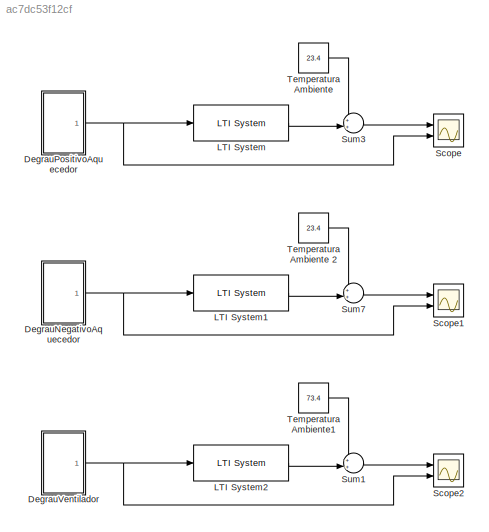
MODEL slx_ac7dc53f12cf
KIND model
CONFIG AbsTol = auto
CONFIG EnableMultiTasking = off
CONFIG FixedStep = auto
CONFIG MaxStep = auto
CONFIG MinStep = auto
CONFIG RelTol = 1e-3
CONFIG SampleTimeConstraint = Unconstrained
CONFIG SolverName = VariableStepAuto
CONFIG StartTime = 0.0
CONFIG StopTime = 4000
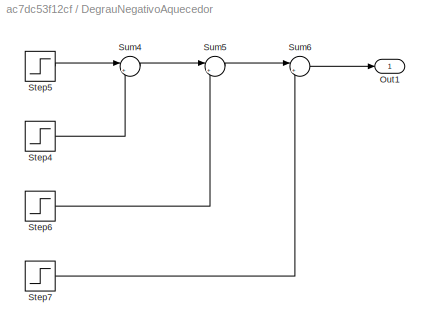
BLOCK [SubSystem] DegrauNegativoAquecedor
  Ports = [0, 1]
  RequestExecContextInheritance = off
BLOCK [Outport] DegrauNegativoAquecedor/Out1
BLOCK [Step] DegrauNegativoAquecedor/Step4
  After = -25
  SampleTime = 0
  Time = 2025
BLOCK [Step] DegrauNegativoAquecedor/Step5
  After = 75
  Before = 100
  SampleTime = 0
  Time = 1432
BLOCK [Step] DegrauNegativoAquecedor/Step6
  After = -25
  SampleTime = 0
  Time = 2674
BLOCK [Step] DegrauNegativoAquecedor/Step7
  After = -25
  SampleTime = 0
  Time = 3345
BLOCK [Sum] DegrauNegativoAquecedor/Sum4
  Inputs = |++
  Ports = [2, 1]
BLOCK [Sum] DegrauNegativoAquecedor/Sum5
  Inputs = |++
  Ports = [2, 1]
BLOCK [Sum] DegrauNegativoAquecedor/Sum6
  Inputs = |++
  Ports = [2, 1]
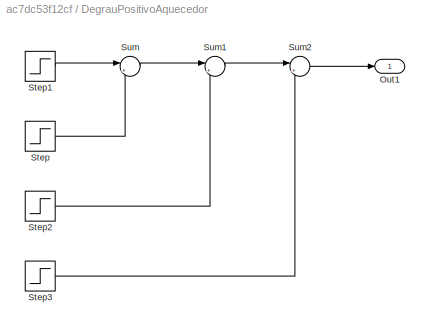
BLOCK [SubSystem] DegrauPositivoAquecedor
  Ports = [0, 1]
  RequestExecContextInheritance = off
BLOCK [Outport] DegrauPositivoAquecedor/Out1
BLOCK [Step] DegrauPositivoAquecedor/Step
  After = 25
  SampleTime = 0
  Time = 399
BLOCK [Step] DegrauPositivoAquecedor/Step1
  After = 25
  SampleTime = 0
  Time = 84
BLOCK [Step] DegrauPositivoAquecedor/Step2
  After = 25
  SampleTime = 0
  Time = 844
BLOCK [Step] DegrauPositivoAquecedor/Step3
  After = 25
  SampleTime = 0
  Time = 1404
BLOCK [Sum] DegrauPositivoAquecedor/Sum
  Inputs = |++
  Ports = [2, 1]
BLOCK [Sum] DegrauPositivoAquecedor/Sum1
  Inputs = |++
  Ports = [2, 1]
BLOCK [Sum] DegrauPositivoAquecedor/Sum2
  Inputs = |++
  Ports = [2, 1]
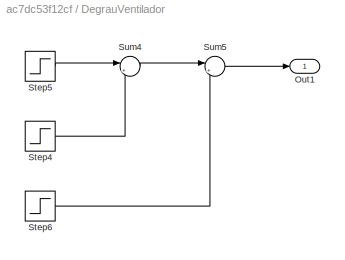
BLOCK [SubSystem] DegrauVentilador
  Ports = [0, 1]
  RequestExecContextInheritance = off
BLOCK [Outport] DegrauVentilador/Out1
BLOCK [Step] DegrauVentilador/Step4
  After = -500
  SampleTime = 0
  Time = 716
BLOCK [Step] DegrauVentilador/Step5
  After = 500
  SampleTime = 0
  Time = 448
BLOCK [Step] DegrauVentilador/Step6
  After = 1000
  SampleTime = 0
  Time = 997
BLOCK [Sum] DegrauVentilador/Sum4
  Inputs = |++
  Ports = [2, 1]
BLOCK [Sum] DegrauVentilador/Sum5
  Inputs = |++
  Ports = [2, 1]
BLOCK [Reference] LTI System  REF=cstblocks/LTI System
  Ports = [1, 1]
  SourceBlock = cstblocks/LTI System
  SourceProductBaseCode = CT
  SourceType = LTI Block
BLOCK [Reference] LTI System1  REF=cstblocks/LTI System
  Ports = [1, 1]
  SourceBlock = cstblocks/LTI System
  SourceProductBaseCode = CT
  SourceType = LTI Block
BLOCK [Reference] LTI System2  REF=cstblocks/LTI System
  Ports = [1, 1]
  SourceBlock = cstblocks/LTI System
  SourceProductBaseCode = CT
  SourceType = LTI Block
BLOCK [Scope] Scope
  Floating = off
  NumInputPorts = 2
  Ports = [2]
  ScopeSpecificationString = Simulink.scopes.TimeScopeBlockCfg('CurrentConfiguration', extmgr.ConfigurationSet(extmgr.Configuration('Core','General UI',true),extmgr.Configuration('Core','Source UI',true),extmgr.Configuration('Sources','WiredSimulink',true),extmgr.Configuration('Visuals','Time Domain',true,'SerializedDisplays',{struct('MinYLimReal','-0.43353','MaxYLimReal','100.72254','YLabelReal','','MinYLimMag','0.00000','Ma...<+1432ch>
BLOCK [Scope] Scope1
  Floating = off
  NumInputPorts = 2
  Ports = [2]
  ScopeSpecificationString = Simulink.scopes.TimeScopeBlockCfg('CurrentConfiguration', extmgr.ConfigurationSet(extmgr.Configuration('Core','General UI',true),extmgr.Configuration('Core','Source UI',true),extmgr.Configuration('Sources','WiredSimulink',true,'DataLoggingVariableName','ScopeData1'),extmgr.Configuration('Visuals','Time Domain',true,'SerializedDisplays',{struct('MinYLimReal','-0.43353','MaxYLimReal','100.72254','YL...<+1471ch>
BLOCK [Scope] Scope2
  Floating = off
  NumInputPorts = 2
  Ports = [2]
  ScopeSpecificationString = Simulink.scopes.TimeScopeBlockCfg('CurrentConfiguration', extmgr.ConfigurationSet(extmgr.Configuration('Core','General UI',true),extmgr.Configuration('Core','Source UI',true),extmgr.Configuration('Sources','WiredSimulink',true,'DataLoggingVariableName','ScopeData2'),extmgr.Configuration('Visuals','Time Domain',true,'SerializedDisplays',{struct('MinYLimReal','-0.43353','MaxYLimReal','100.72254','YL...<+1464ch>
BLOCK [Sum] Sum1
  Inputs = ++|
  Ports = [2, 1]
BLOCK [Sum] Sum3
  Inputs = ++|
  Ports = [2, 1]
BLOCK [Sum] Sum7
  Inputs = ++|
  Ports = [2, 1]
BLOCK [Constant] Temperatura Ambiente
  Value = 23.4
BLOCK [Constant] Temperatura Ambiente 2
  Value = 23.4
BLOCK [Constant] Temperatura Ambiente1
  Value = 73.4
LINE DegrauNegativoAquecedor/Step4:1 -> DegrauNegativoAquecedor/Sum4:2
LINE DegrauNegativoAquecedor/Step5:1 -> DegrauNegativoAquecedor/Sum4:1
LINE DegrauNegativoAquecedor/Step6:1 -> DegrauNegativoAquecedor/Sum5:2
LINE DegrauNegativoAquecedor/Step7:1 -> DegrauNegativoAquecedor/Sum6:2
LINE DegrauNegativoAquecedor/Sum4:1 -> DegrauNegativoAquecedor/Sum5:1
LINE DegrauNegativoAquecedor/Sum5:1 -> DegrauNegativoAquecedor/Sum6:1
LINE DegrauNegativoAquecedor/Sum6:1 -> DegrauNegativoAquecedor/Out1:1
NET DegrauNegativoAquecedor:1 -> LTI System1:1, Scope1:2
LINE DegrauPositivoAquecedor/Step1:1 -> DegrauPositivoAquecedor/Sum:1
LINE DegrauPositivoAquecedor/Step2:1 -> DegrauPositivoAquecedor/Sum1:2
LINE DegrauPositivoAquecedor/Step3:1 -> DegrauPositivoAquecedor/Sum2:2
LINE DegrauPositivoAquecedor/Step:1 -> DegrauPositivoAquecedor/Sum:2
LINE DegrauPositivoAquecedor/Sum1:1 -> DegrauPositivoAquecedor/Sum2:1
LINE DegrauPositivoAquecedor/Sum2:1 -> DegrauPositivoAquecedor/Out1:1
LINE DegrauPositivoAquecedor/Sum:1 -> DegrauPositivoAquecedor/Sum1:1
NET DegrauPositivoAquecedor:1 -> LTI System:1, Scope:2
LINE DegrauVentilador/Step4:1 -> DegrauVentilador/Sum4:2
LINE DegrauVentilador/Step5:1 -> DegrauVentilador/Sum4:1
LINE DegrauVentilador/Step6:1 -> DegrauVentilador/Sum5:2
LINE DegrauVentilador/Sum4:1 -> DegrauVentilador/Sum5:1
LINE DegrauVentilador/Sum5:1 -> DegrauVentilador/Out1:1
NET DegrauVentilador:1 -> LTI System2:1, Scope2:2
LINE LTI System1:1 -> Sum7:2
LINE LTI System2:1 -> Sum1:2
LINE LTI System:1 -> Sum3:2
LINE Sum1:1 -> Scope2:1
LINE Sum3:1 -> Scope:1
LINE Sum7:1 -> Scope1:1
LINE Temperatura Ambiente 2:1 -> Sum7:1
LINE Temperatura Ambiente1:1 -> Sum1:1
LINE Temperatura Ambiente:1 -> Sum3:1
note: NET lines group one-source signal fan-out (src -> all destinations, sorted); 1:1 wires keep LINE
